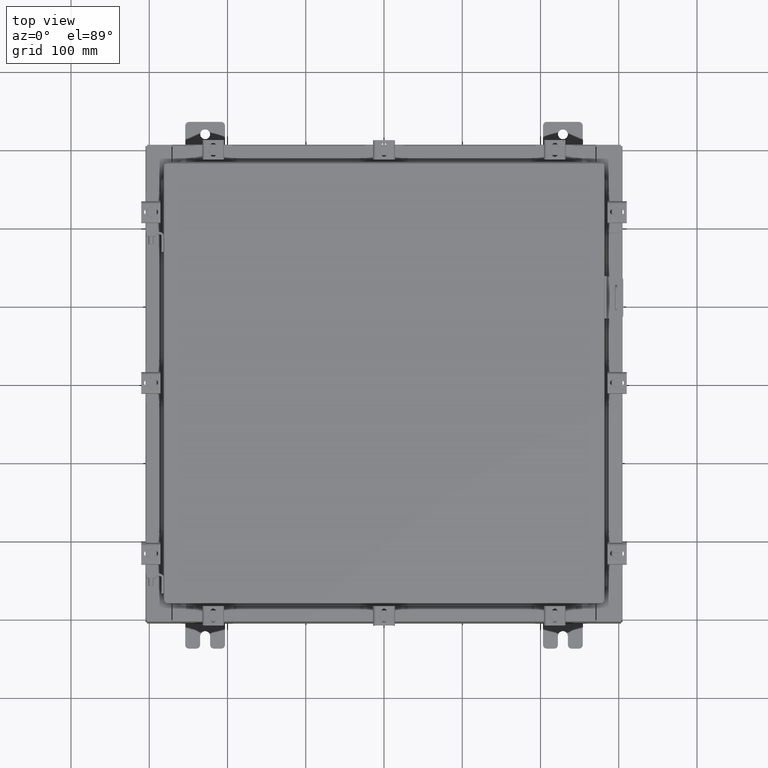
[diagram: clean part render]
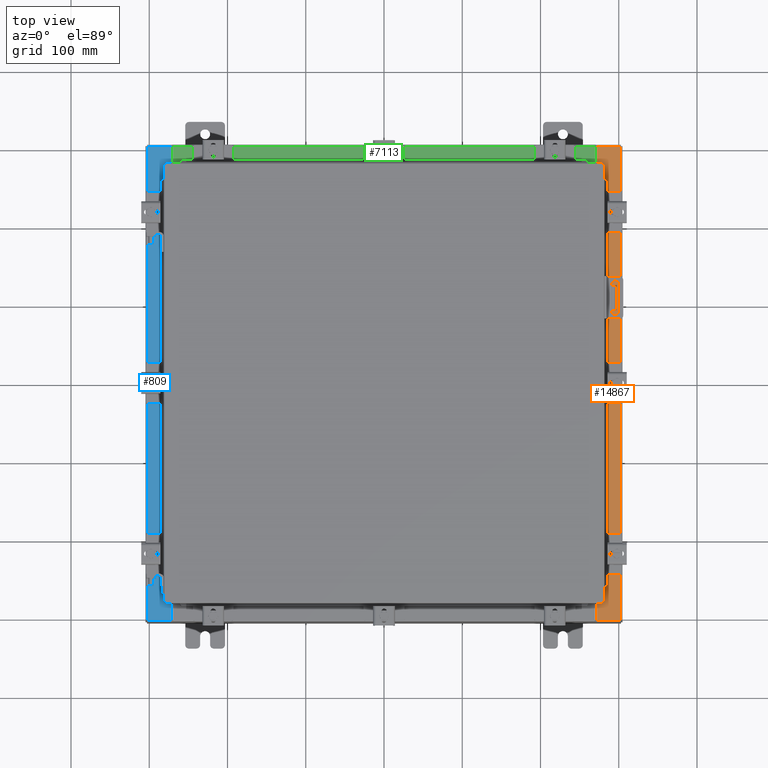
[diagram: same view with three faces highlighted in distinct colors, each labeled with its STEP entity id]
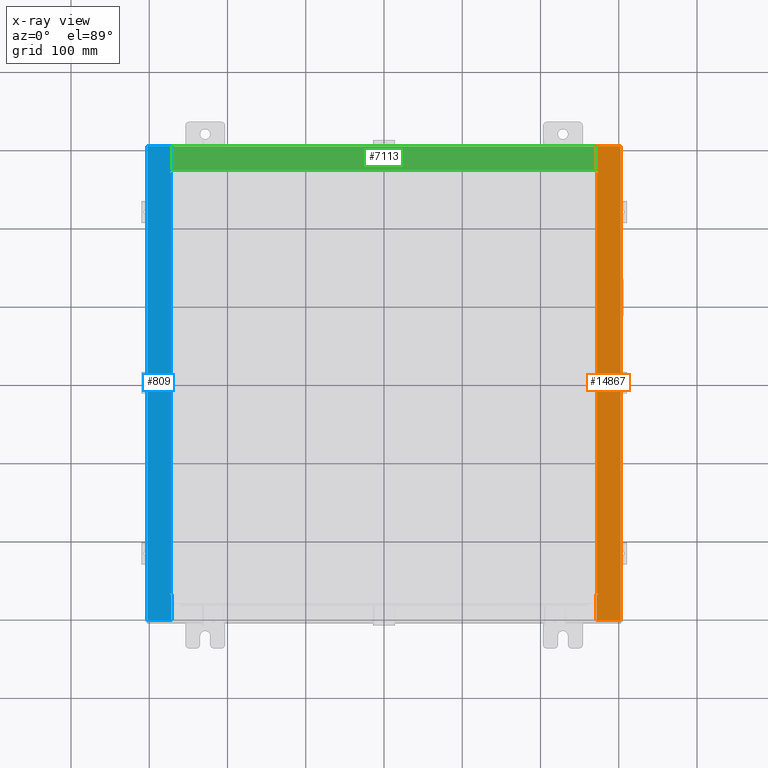
[diagram: x-ray of the same camera — body ghosted, the three highlighted faces saturated]
A machine part, top view with three faces highlighted in distinct colors.
The next image is the same camera in x-ray (body ghosted, the three faces saturated) — at least one of them is partly hidden behind the body in this view.
Their STEP definitions:

[orange] entity #14867 — the highlighted planar face has unit normal (-0, 0, -1).
#490 = LINE ( 'NONE', #5766, #18465 ) ;
#496 = VECTOR ( 'NONE', #21232, 39.37007874015748100 ) ;
#682 = PLANE ( 'NONE',  #22151 ) ;
#1091 = VERTEX_POINT ( 'NONE', #1910 ) ;
#1236 = DIRECTION ( 'NONE',  ( 0.0000000000000000000, -1.000000000000000000, 0.0000000000000000000 ) ) ;
#1242 = EDGE_LOOP ( 'NONE', ( #17448, #19804, #17491, #3221, #12556, #14446, #3649, #9106, #18627, #9461, #19132, #2414 ) ) ;
#1324 = CARTESIAN_POINT ( 'NONE',  ( 10.69970000000002000, -10.63110000000000200, 5.925300000000008900 ) ) ;
#1834 = VERTEX_POINT ( 'NONE', #4195 ) ;
#1910 = CARTESIAN_POINT ( 'NONE',  ( 10.69970000000002000, -11.92530000000000400, 5.925300000000009800 ) ) ;
#2414 = ORIENTED_EDGE ( 'NONE', *, *, #3021, .F. ) ;
#2565 = VECTOR ( 'NONE', #1236, 39.37007874015748100 ) ;
#2662 = DIRECTION ( 'NONE',  ( -1.000000000000000000, 0.0000000000000000000, 2.170286390199955400E-014 ) ) ;
#2879 = CARTESIAN_POINT ( 'NONE',  ( 10.69970000000002000, 0.0000000000000000000, 5.925300000000009800 ) ) ;
#3021 = EDGE_CURVE ( 'NONE', #15227, #16477, #14690, .T. ) ;
#3221 = ORIENTED_EDGE ( 'NONE', *, *, #18820, .F. ) ;
#3455 = CARTESIAN_POINT ( 'NONE',  ( 10.69970000000002000, 10.63109999999999500, 5.925300000000009800 ) ) ;
#3617 = VERTEX_POINT ( 'NONE', #3455 ) ;
#3649 = ORIENTED_EDGE ( 'NONE', *, *, #21484, .F. ) ;
#3768 = VECTOR ( 'NONE', #2662, 39.37007874015748100 ) ;
#4149 = CARTESIAN_POINT ( 'NONE',  ( 11.91230000000001800, -11.92530000000000400, 5.925300000000001800 ) ) ;
#4195 = CARTESIAN_POINT ( 'NONE',  ( 11.91230000000001800, -11.92530000000000400, 5.925300000000001800 ) ) ;
#4373 = VERTEX_POINT ( 'NONE', #12893 ) ;
#4446 = CARTESIAN_POINT ( 'NONE',  ( 10.75005000000002100, 10.63109999999999300, 5.925300000000008000 ) ) ;
#4890 = CARTESIAN_POINT ( 'NONE',  ( 10.75005000000002100, 10.59374999999999300, 5.925300000000009800 ) ) ;
#5127 = LINE ( 'NONE', #15967, #496 ) ;
#5249 = EDGE_CURVE ( 'NONE', #1091, #1834, #19264, .T. ) ;
#5270 = VECTOR ( 'NONE', #21614, 39.37007874015748100 ) ;
#5401 = CARTESIAN_POINT ( 'NONE',  ( 10.75005000000002100, -10.61242500000000200, 5.925300000000008000 ) ) ;
#5766 = CARTESIAN_POINT ( 'NONE',  ( 10.69970000000002000, 0.0000000000000000000, 5.925300000000009800 ) ) ;
#5767 = VERTEX_POINT ( 'NONE', #16732 ) ;
#5865 = DIRECTION ( 'NONE',  ( -1.000000000000000000, 0.0000000000000000000, 0.0000000000000000000 ) ) ;
#5889 = DIRECTION ( 'NONE',  ( -7.132762385546384700E-015, 0.0000000000000000000, -1.000000000000000000 ) ) ;
#6262 = LINE ( 'NONE', #1324, #14995 ) ;
#6328 = CARTESIAN_POINT ( 'NONE',  ( 10.69970000000002000, 11.92529999999999600, 5.925300000000009800 ) ) ;
#6365 = CARTESIAN_POINT ( 'NONE',  ( 10.75005000000002100, -10.59375000000000200, 5.925300000000009800 ) ) ;
#6671 = EDGE_CURVE ( 'NONE', #19315, #15227, #6262, .T. ) ;
#6743 = DIRECTION ( 'NONE',  ( 1.000000000000000000, 0.0000000000000000000, -7.132762385546384700E-015 ) ) ;
#7144 = DIRECTION ( 'NONE',  ( 1.000000000000000000, 0.0000000000000000000, 0.0000000000000000000 ) ) ;
#7498 = DIRECTION ( 'NONE',  ( 0.0000000000000000000, -1.000000000000000000, 0.0000000000000000000 ) ) ;
#7577 = VERTEX_POINT ( 'NONE', #6328 ) ;
#7768 = VERTEX_POINT ( 'NONE', #4890 ) ;
#7973 = VERTEX_POINT ( 'NONE', #12765 ) ;
#8260 = FACE_OUTER_BOUND ( 'NONE', #1242, .T. ) ;
#8388 = CIRCLE ( 'NONE', #12003, 0.01867499999999949400 ) ;
#8406 = EDGE_CURVE ( 'NONE', #7973, #7768, #5127, .T. ) ;
#8598 = DIRECTION ( 'NONE',  ( 7.132762385546384700E-015, 0.0000000000000000000, 1.000000000000000000 ) ) ;
#9106 = ORIENTED_EDGE ( 'NONE', *, *, #12348, .F. ) ;
#9461 = ORIENTED_EDGE ( 'NONE', *, *, #11046, .F. ) ;
#9854 = CARTESIAN_POINT ( 'NONE',  ( 10.71270000000002100, -10.59375000000000200, 5.925300000000008000 ) ) ;
#9886 = LINE ( 'NONE', #4149, #5270 ) ;
#10003 = CARTESIAN_POINT ( 'NONE',  ( 4.252457061909019600E-014, 11.92529999999999600, 5.925300000000087100 ) ) ;
#10243 = CARTESIAN_POINT ( 'NONE',  ( 10.75005000000002100, -10.63110000000000200, 5.925300000000009800 ) ) ;
#11046 = EDGE_CURVE ( 'NONE', #18911, #7973, #16344, .T. ) ;
#11063 = CARTESIAN_POINT ( 'NONE',  ( 4.252457061909019600E-014, 0.0000000000000000000, 5.925300000000087100 ) ) ;
#11385 = EDGE_CURVE ( 'NONE', #16477, #18911, #20154, .T. ) ;
#11688 = VECTOR ( 'NONE', #22542, 39.37007874015748100 ) ;
#12003 = AXIS2_PLACEMENT_3D ( 'NONE', #19028, #8598, #20805 ) ;
#12348 = EDGE_CURVE ( 'NONE', #7768, #5767, #8388, .T. ) ;
#12510 = EDGE_CURVE ( 'NONE', #19315, #1091, #490, .T. ) ;
#12556 = ORIENTED_EDGE ( 'NONE', *, *, #20871, .T. ) ;
#12567 = CARTESIAN_POINT ( 'NONE',  ( 10.69970000000002000, -10.63110000000000200, 5.925300000000009800 ) ) ;
#12765 = CARTESIAN_POINT ( 'NONE',  ( 10.71270000000002100, 10.59374999999999300, 5.925300000000008000 ) ) ;
#12793 = CARTESIAN_POINT ( 'NONE',  ( 10.75005000000002100, -10.59375000000000200, 5.925300000000008000 ) ) ;
#12893 = CARTESIAN_POINT ( 'NONE',  ( 11.91230000000001800, 11.92529999999999600, 5.925300000000001800 ) ) ;
#13529 = VECTOR ( 'NONE', #6743, 39.37007874015748100 ) ;
#13614 = VECTOR ( 'NONE', #20461, 39.37007874015748100 ) ;
#13809 = EDGE_CURVE ( 'NONE', #7577, #3617, #17044, .T. ) ;
#14446 = ORIENTED_EDGE ( 'NONE', *, *, #13809, .T. ) ;
#14690 = CIRCLE ( 'NONE', #16834, 0.01867499999999949400 ) ;
#14867 = ADVANCED_FACE ( 'NONE', ( #8260 ), #682, .F. ) ;
#14995 = VECTOR ( 'NONE', #17012, 39.37007874015748100 ) ;
#15227 = VERTEX_POINT ( 'NONE', #10243 ) ;
#15443 = CARTESIAN_POINT ( 'NONE',  ( 4.252457061909019600E-014, -11.92530000000000400, 5.925300000000087100 ) ) ;
#15518 = VECTOR ( 'NONE', #5865, 39.37007874015748100 ) ;
#15967 = CARTESIAN_POINT ( 'NONE',  ( 10.71270000000002100, 10.59374999999999300, 5.925300000000008000 ) ) ;
#16344 = LINE ( 'NONE', #9854, #11688 ) ;
#16477 = VERTEX_POINT ( 'NONE', #6365 ) ;
#16732 = CARTESIAN_POINT ( 'NONE',  ( 10.75005000000002100, 10.63109999999999300, 5.925300000000009800 ) ) ;
#16834 = AXIS2_PLACEMENT_3D ( 'NONE', #5401, #17574, #7144 ) ;
#17012 = DIRECTION ( 'NONE',  ( 1.000000000000000000, 0.0000000000000000000, -2.170286390199955400E-014 ) ) ;
#17044 = LINE ( 'NONE', #2879, #2565 ) ;
#17448 = ORIENTED_EDGE ( 'NONE', *, *, #6671, .F. ) ;
#17491 = ORIENTED_EDGE ( 'NONE', *, *, #5249, .T. ) ;
#17574 = DIRECTION ( 'NONE',  ( 7.132762385546384700E-015, 0.0000000000000000000, 1.000000000000000000 ) ) ;
#17687 = LINE ( 'NONE', #10003, #13614 ) ;
#18091 = DIRECTION ( 'NONE',  ( -1.000000000000000000, 0.0000000000000000000, 7.132762385546384700E-015 ) ) ;
#18225 = LINE ( 'NONE', #4446, #3768 ) ;
#18465 = VECTOR ( 'NONE', #7498, 39.37007874015748100 ) ;
#18627 = ORIENTED_EDGE ( 'NONE', *, *, #8406, .F. ) ;
#18820 = EDGE_CURVE ( 'NONE', #4373, #1834, #9886, .T. ) ;
#18911 = VERTEX_POINT ( 'NONE', #20074 ) ;
#19028 = CARTESIAN_POINT ( 'NONE',  ( 10.75005000000002100, 10.61242499999999300, 5.925300000000008000 ) ) ;
#19132 = ORIENTED_EDGE ( 'NONE', *, *, #11385, .F. ) ;
#19264 = LINE ( 'NONE', #15443, #13529 ) ;
#19315 = VERTEX_POINT ( 'NONE', #12567 ) ;
#19804 = ORIENTED_EDGE ( 'NONE', *, *, #12510, .T. ) ;
#20074 = CARTESIAN_POINT ( 'NONE',  ( 10.71270000000002100, -10.59375000000000200, 5.925300000000008000 ) ) ;
#20154 = LINE ( 'NONE', #12793, #15518 ) ;
#20461 = DIRECTION ( 'NONE',  ( -1.000000000000000000, 0.0000000000000000000, 7.132762385546384700E-015 ) ) ;
#20805 = DIRECTION ( 'NONE',  ( 1.000000000000000000, 0.0000000000000000000, 0.0000000000000000000 ) ) ;
#20871 = EDGE_CURVE ( 'NONE', #4373, #7577, #17687, .T. ) ;
#21232 = DIRECTION ( 'NONE',  ( 1.000000000000000000, 0.0000000000000000000, 0.0000000000000000000 ) ) ;
#21484 = EDGE_CURVE ( 'NONE', #5767, #3617, #18225, .T. ) ;
#21614 = DIRECTION ( 'NONE',  ( -0.0000000000000000000, -1.000000000000000000, -0.0000000000000000000 ) ) ;
#22151 = AXIS2_PLACEMENT_3D ( 'NONE', #11063, #5889, #18091 ) ;
#22542 = DIRECTION ( 'NONE',  ( -0.0000000000000000000, 1.000000000000000000, -0.0000000000000000000 ) ) ;

[blue] entity #809 — the highlighted planar face has unit normal (0, 0, -1).
#13 = CIRCLE ( 'NONE', #10731, 0.01867499999999949400 ) ;
#577 = VERTEX_POINT ( 'NONE', #16884 ) ;
#655 = DIRECTION ( 'NONE',  ( 1.000000000000000000, 0.0000000000000000000, 0.0000000000000000000 ) ) ;
#809 = ADVANCED_FACE ( 'NONE', ( #11644 ), #5571, .F. ) ;
#876 = VERTEX_POINT ( 'NONE', #22035 ) ;
#1093 = DIRECTION ( 'NONE',  ( 1.000000000000000000, 0.0000000000000000000, 0.0000000000000000000 ) ) ;
#2168 = VECTOR ( 'NONE', #18992, 39.37007874015748100 ) ;
#2439 = EDGE_CURVE ( 'NONE', #16984, #18783, #10106, .T. ) ;
#2885 = CARTESIAN_POINT ( 'NONE',  ( -10.75005000000002300, -10.63109999999999600, 5.925300000000008000 ) ) ;
#2993 = VECTOR ( 'NONE', #19002, 39.37007874015748100 ) ;
#3267 = LINE ( 'NONE', #17269, #2168 ) ;
#3276 = ORIENTED_EDGE ( 'NONE', *, *, #7236, .F. ) ;
#3331 = ORIENTED_EDGE ( 'NONE', *, *, #20974, .T. ) ;
#3447 = EDGE_CURVE ( 'NONE', #10144, #577, #12240, .T. ) ;
#3801 = CARTESIAN_POINT ( 'NONE',  ( -10.75005000000002300, -10.61242499999999800, 5.925300000000008000 ) ) ;
#3857 = DIRECTION ( 'NONE',  ( 7.132762385546384700E-015, 0.0000000000000000000, -1.000000000000000000 ) ) ;
#4024 = CARTESIAN_POINT ( 'NONE',  ( -4.252457061909017700E-014, 0.0000000000000000000, 5.925300000000084400 ) ) ;
#4064 = CARTESIAN_POINT ( 'NONE',  ( -11.91230000000002500, 11.92529999999999800, 5.925299999999999100 ) ) ;
#4175 = EDGE_CURVE ( 'NONE', #8178, #577, #13014, .T. ) ;
#4403 = VECTOR ( 'NONE', #20606, 39.37007874015748100 ) ;
#4691 = LINE ( 'NONE', #18310, #9289 ) ;
#4948 = VECTOR ( 'NONE', #21164, 39.37007874015748100 ) ;
#5188 = ORIENTED_EDGE ( 'NONE', *, *, #21271, .F. ) ;
#5416 = VERTEX_POINT ( 'NONE', #12374 ) ;
#5550 = CARTESIAN_POINT ( 'NONE',  ( -11.91230000000002300, 11.92529999999999800, 5.925299999999999100 ) ) ;
#5571 = PLANE ( 'NONE',  #14232 ) ;
#5573 = DIRECTION ( 'NONE',  ( 1.000000000000000000, 0.0000000000000000000, 0.0000000000000000000 ) ) ;
#5678 = EDGE_CURVE ( 'NONE', #9773, #876, #4691, .T. ) ;
#5919 = VECTOR ( 'NONE', #6457, 39.37007874015748100 ) ;
#5934 = EDGE_CURVE ( 'NONE', #876, #14440, #18283, .T. ) ;
#6120 = DIRECTION ( 'NONE',  ( -0.0000000000000000000, -1.000000000000000000, -0.0000000000000000000 ) ) ;
#6457 = DIRECTION ( 'NONE',  ( 1.000000000000000000, 0.0000000000000000000, 0.0000000000000000000 ) ) ;
#6518 = CIRCLE ( 'NONE', #15734, 0.01867499999999949400 ) ;
#6704 = DIRECTION ( 'NONE',  ( 1.000000000000000000, -4.379057701015053300E-047, 7.132762385546384700E-015 ) ) ;
#7069 = CARTESIAN_POINT ( 'NONE',  ( -10.71270000000002300, 10.59374999999999800, 5.925300000000008000 ) ) ;
#7236 = EDGE_CURVE ( 'NONE', #14440, #8178, #13, .T. ) ;
#8167 = LINE ( 'NONE', #17273, #2993 ) ;
#8178 = VERTEX_POINT ( 'NONE', #2885 ) ;
#8403 = CARTESIAN_POINT ( 'NONE',  ( -10.71270000000002300, -10.59374999999999800, 5.925300000000008000 ) ) ;
#9215 = ORIENTED_EDGE ( 'NONE', *, *, #4175, .F. ) ;
#9289 = VECTOR ( 'NONE', #6120, 39.37007874015748100 ) ;
#9773 = VERTEX_POINT ( 'NONE', #7069 ) ;
#10106 = LINE ( 'NONE', #5550, #4948 ) ;
#10144 = VERTEX_POINT ( 'NONE', #12621 ) ;
#10146 = CARTESIAN_POINT ( 'NONE',  ( -4.252457061909017700E-014, -11.92530000000000000, 5.925300000000084400 ) ) ;
#10411 = LINE ( 'NONE', #17948, #19119 ) ;
#10731 = AXIS2_PLACEMENT_3D ( 'NONE', #3801, #16004, #5573 ) ;
#10806 = ORIENTED_EDGE ( 'NONE', *, *, #17869, .T. ) ;
#11034 = EDGE_CURVE ( 'NONE', #18517, #5416, #8167, .T. ) ;
#11037 = DIRECTION ( 'NONE',  ( -7.132762385546384700E-015, -0.0000000000000000000, 1.000000000000000000 ) ) ;
#11052 = VERTEX_POINT ( 'NONE', #12079 ) ;
#11298 = ORIENTED_EDGE ( 'NONE', *, *, #2439, .F. ) ;
#11644 = FACE_OUTER_BOUND ( 'NONE', #15581, .T. ) ;
#11684 = VECTOR ( 'NONE', #22409, 39.37007874015748100 ) ;
#12079 = CARTESIAN_POINT ( 'NONE',  ( -10.69970000000002300, 11.92529999999999800, 5.925300000000008000 ) ) ;
#12240 = LINE ( 'NONE', #20635, #11684 ) ;
#12257 = EDGE_CURVE ( 'NONE', #22030, #9773, #19287, .T. ) ;
#12374 = CARTESIAN_POINT ( 'NONE',  ( -10.75005000000002300, 10.63109999999999600, 5.925300000000008000 ) ) ;
#12621 = CARTESIAN_POINT ( 'NONE',  ( -10.69970000000002300, -11.92530000000000000, 5.925300000000008000 ) ) ;
#13014 = LINE ( 'NONE', #21971, #21775 ) ;
#13462 = CARTESIAN_POINT ( 'NONE',  ( -10.75005000000002300, 10.59374999999999800, 5.925300000000008000 ) ) ;
#13835 = CARTESIAN_POINT ( 'NONE',  ( -10.69970000000002300, 10.63109999999999600, 5.925300000000008000 ) ) ;
#14232 = AXIS2_PLACEMENT_3D ( 'NONE', #4024, #3857, #15508 ) ;
#14426 = CARTESIAN_POINT ( 'NONE',  ( -10.75005000000002300, 10.59374999999999800, 5.925300000000008000 ) ) ;
#14440 = VERTEX_POINT ( 'NONE', #18249 ) ;
#15440 = ORIENTED_EDGE ( 'NONE', *, *, #11034, .F. ) ;
#15508 = DIRECTION ( 'NONE',  ( -1.000000000000000000, 0.0000000000000000000, -7.132762385546384700E-015 ) ) ;
#15581 = EDGE_LOOP ( 'NONE', ( #15440, #20717, #3331, #11298, #10806, #21283, #9215, #3276, #19117, #19561, #17780, #5188 ) ) ;
#15734 = AXIS2_PLACEMENT_3D ( 'NONE', #21500, #11037, #655 ) ;
#15739 = EDGE_CURVE ( 'NONE', #18517, #11052, #10411, .T. ) ;
#15917 = LINE ( 'NONE', #10146, #19453 ) ;
#16004 = DIRECTION ( 'NONE',  ( -7.132762385546384700E-015, -0.0000000000000000000, 1.000000000000000000 ) ) ;
#16884 = CARTESIAN_POINT ( 'NONE',  ( -10.69970000000002300, -10.63109999999999800, 5.925300000000008000 ) ) ;
#16984 = VERTEX_POINT ( 'NONE', #17900 ) ;
#17269 = CARTESIAN_POINT ( 'NONE',  ( -4.252457061909017700E-014, 11.92529999999999800, 5.925300000000084400 ) ) ;
#17273 = CARTESIAN_POINT ( 'NONE',  ( -10.69970000000002300, 10.63109999999999600, 5.925300000000008000 ) ) ;
#17780 = ORIENTED_EDGE ( 'NONE', *, *, #12257, .F. ) ;
#17869 = EDGE_CURVE ( 'NONE', #16984, #10144, #15917, .T. ) ;
#17900 = CARTESIAN_POINT ( 'NONE',  ( -11.91230000000002500, -11.92530000000000000, 5.925299999999999100 ) ) ;
#17948 = CARTESIAN_POINT ( 'NONE',  ( -10.69970000000002300, -3.338884789195309000E-030, 5.925300000000008000 ) ) ;
#18249 = CARTESIAN_POINT ( 'NONE',  ( -10.75005000000002300, -10.59374999999999800, 5.925300000000008000 ) ) ;
#18283 = LINE ( 'NONE', #8403, #4403 ) ;
#18310 = CARTESIAN_POINT ( 'NONE',  ( -10.71270000000002300, 10.59374999999999800, 5.925300000000008000 ) ) ;
#18517 = VERTEX_POINT ( 'NONE', #13835 ) ;
#18783 = VERTEX_POINT ( 'NONE', #4064 ) ;
#18992 = DIRECTION ( 'NONE',  ( -1.000000000000000000, -4.084933421431495300E-032, -7.132762385546384700E-015 ) ) ;
#19002 = DIRECTION ( 'NONE',  ( -1.000000000000000000, 0.0000000000000000000, 0.0000000000000000000 ) ) ;
#19117 = ORIENTED_EDGE ( 'NONE', *, *, #5934, .F. ) ;
#19119 = VECTOR ( 'NONE', #19725, 39.37007874015748100 ) ;
#19287 = LINE ( 'NONE', #13462, #5919 ) ;
#19453 = VECTOR ( 'NONE', #6704, 39.37007874015748100 ) ;
#19561 = ORIENTED_EDGE ( 'NONE', *, *, #5678, .F. ) ;
#19725 = DIRECTION ( 'NONE',  ( -3.120540565805877600E-031, 1.000000000000000000, -2.225807437035179500E-045 ) ) ;
#20606 = DIRECTION ( 'NONE',  ( -1.000000000000000000, 0.0000000000000000000, 0.0000000000000000000 ) ) ;
#20635 = CARTESIAN_POINT ( 'NONE',  ( -10.69970000000002300, -3.338884789195309000E-030, 5.925300000000008000 ) ) ;
#20717 = ORIENTED_EDGE ( 'NONE', *, *, #15739, .T. ) ;
#20974 = EDGE_CURVE ( 'NONE', #11052, #18783, #3267, .T. ) ;
#21164 = DIRECTION ( 'NONE',  ( 9.163200904511462000E-017, 1.000000000000000000, 6.535893474290396800E-031 ) ) ;
#21271 = EDGE_CURVE ( 'NONE', #5416, #22030, #6518, .T. ) ;
#21283 = ORIENTED_EDGE ( 'NONE', *, *, #3447, .T. ) ;
#21500 = CARTESIAN_POINT ( 'NONE',  ( -10.75005000000002300, 10.61242499999999800, 5.925300000000008000 ) ) ;
#21775 = VECTOR ( 'NONE', #1093, 39.37007874015748100 ) ;
#21971 = CARTESIAN_POINT ( 'NONE',  ( -10.75005000000002300, -10.63109999999999600, 5.925300000000008000 ) ) ;
#22030 = VERTEX_POINT ( 'NONE', #14426 ) ;
#22035 = CARTESIAN_POINT ( 'NONE',  ( -10.71270000000002300, -10.59374999999999800, 5.925300000000008000 ) ) ;
#22409 = DIRECTION ( 'NONE',  ( -3.120540565805877600E-031, 1.000000000000000000, -2.225807437035179500E-045 ) ) ;

[green] entity #7113 — the highlighted planar face has unit normal (0, 0, 1).
#483 = CARTESIAN_POINT ( 'NONE',  ( 10.63720000000000400, -0.08769999999999965300, 3.000000000000000900 ) ) ;
#573 = CARTESIAN_POINT ( 'NONE',  ( -10.63720000000000200, -1.287299999999999200, 3.000000000000005300 ) ) ;
#1073 = DIRECTION ( 'NONE',  ( -0.0000000000000000000, 1.000000000000000000, -3.566381192773190000E-015 ) ) ;
#1433 = AXIS2_PLACEMENT_3D ( 'NONE', #12146, #1742, #13880 ) ;
#1458 = EDGE_LOOP ( 'NONE', ( #6022, #16393, #5608, #8975 ) ) ;
#1742 = DIRECTION ( 'NONE',  ( 0.0000000000000000000, 3.566381192773190000E-015, 1.000000000000000000 ) ) ;
#1980 = CARTESIAN_POINT ( 'NONE',  ( 10.63720000000000200, -1.300299999999999800, 3.000000000000005300 ) ) ;
#2785 = VERTEX_POINT ( 'NONE', #2864 ) ;
#2864 = CARTESIAN_POINT ( 'NONE',  ( -10.63720000000000200, -0.08770000000000000000, 3.000000000000000900 ) ) ;
#3016 = VECTOR ( 'NONE', #20161, 39.37007874015748100 ) ;
#3415 = DIRECTION ( 'NONE',  ( -1.000000000000000000, 2.568202152506545800E-017, -9.159187855938968600E-032 ) ) ;
#3883 = VECTOR ( 'NONE', #14139, 39.37007874015748100 ) ;
#5254 = CARTESIAN_POINT ( 'NONE',  ( -2.252313287748515100E-018, -0.08770000000000000000, 3.000000000000001300 ) ) ;
#5608 = ORIENTED_EDGE ( 'NONE', *, *, #18640, .F. ) ;
#6022 = ORIENTED_EDGE ( 'NONE', *, *, #15852, .F. ) ;
#6113 = LINE ( 'NONE', #5254, #13744 ) ;
#6292 = VERTEX_POINT ( 'NONE', #483 ) ;
#7113 = ADVANCED_FACE ( 'NONE', ( #15528 ), #12130, .T. ) ;
#7343 = VERTEX_POINT ( 'NONE', #573 ) ;
#7620 = LINE ( 'NONE', #16664, #3016 ) ;
#8975 = ORIENTED_EDGE ( 'NONE', *, *, #13956, .T. ) ;
#12130 = PLANE ( 'NONE',  #1433 ) ;
#12146 = CARTESIAN_POINT ( 'NONE',  ( 0.0000000000000000000, 1.069354855923099900E-014, 3.000000000000000900 ) ) ;
#12601 = LINE ( 'NONE', #1980, #3883 ) ;
#13380 = LINE ( 'NONE', #14907, #21580 ) ;
#13744 = VECTOR ( 'NONE', #3415, 39.37007874015748100 ) ;
#13880 = DIRECTION ( 'NONE',  ( 0.0000000000000000000, -1.000000000000000000, 3.566381192773190000E-015 ) ) ;
#13956 = EDGE_CURVE ( 'NONE', #6292, #2785, #6113, .T. ) ;
#14139 = DIRECTION ( 'NONE',  ( -0.0000000000000000000, -1.000000000000000000, 3.566381192773190000E-015 ) ) ;
#14907 = CARTESIAN_POINT ( 'NONE',  ( -10.63720000000000200, -0.07469999999999973900, 3.000000000000000900 ) ) ;
#15528 = FACE_OUTER_BOUND ( 'NONE', #1458, .T. ) ;
#15852 = EDGE_CURVE ( 'NONE', #7343, #2785, #13380, .T. ) ;
#16393 = ORIENTED_EDGE ( 'NONE', *, *, #16432, .F. ) ;
#16432 = EDGE_CURVE ( 'NONE', #18281, #7343, #7620, .T. ) ;
#16664 = CARTESIAN_POINT ( 'NONE',  ( 10.63720000000000400, -1.287299999999999900, 3.000000000000005300 ) ) ;
#18281 = VERTEX_POINT ( 'NONE', #19865 ) ;
#18640 = EDGE_CURVE ( 'NONE', #6292, #18281, #12601, .T. ) ;
#19865 = CARTESIAN_POINT ( 'NONE',  ( 10.63720000000000200, -1.287299999999999900, 3.000000000000005300 ) ) ;
#20161 = DIRECTION ( 'NONE',  ( -1.000000000000000000, 0.0000000000000000000, 0.0000000000000000000 ) ) ;
#21580 = VECTOR ( 'NONE', #1073, 39.37007874015748100 ) ;